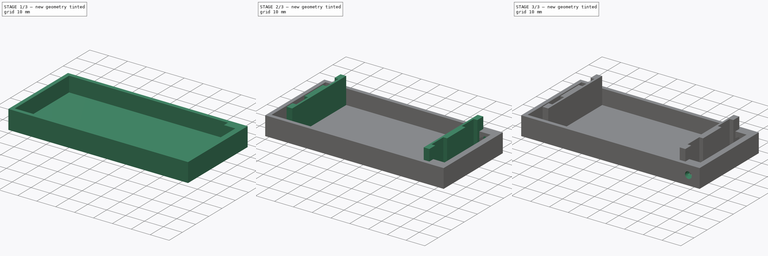
[diagram: build sequence overview — one tinted view per stage of 3, left to right]
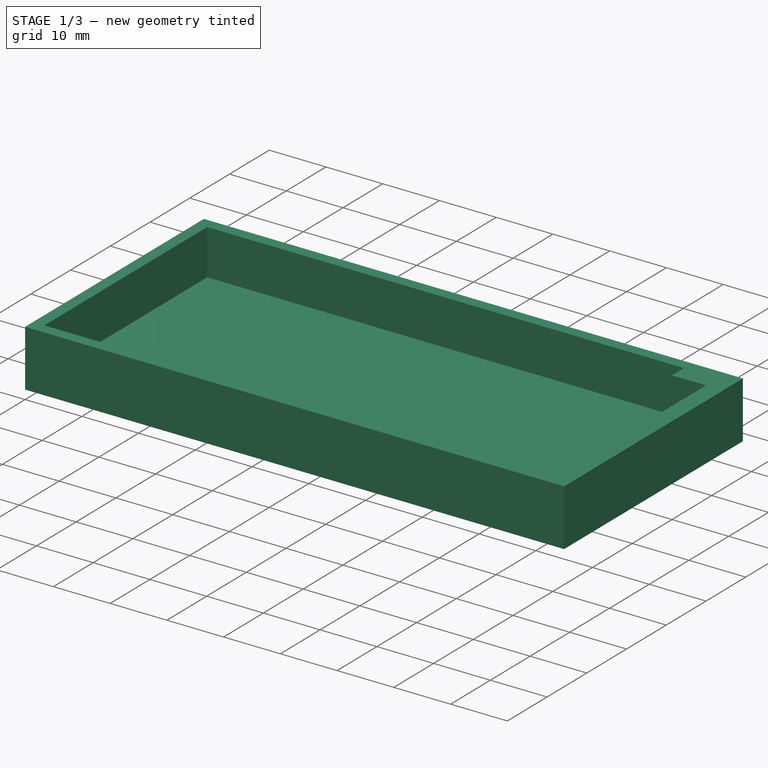
[diagram: stage 1 of 3 — iso view after this stage's code; geometry added in this stage tinted green]
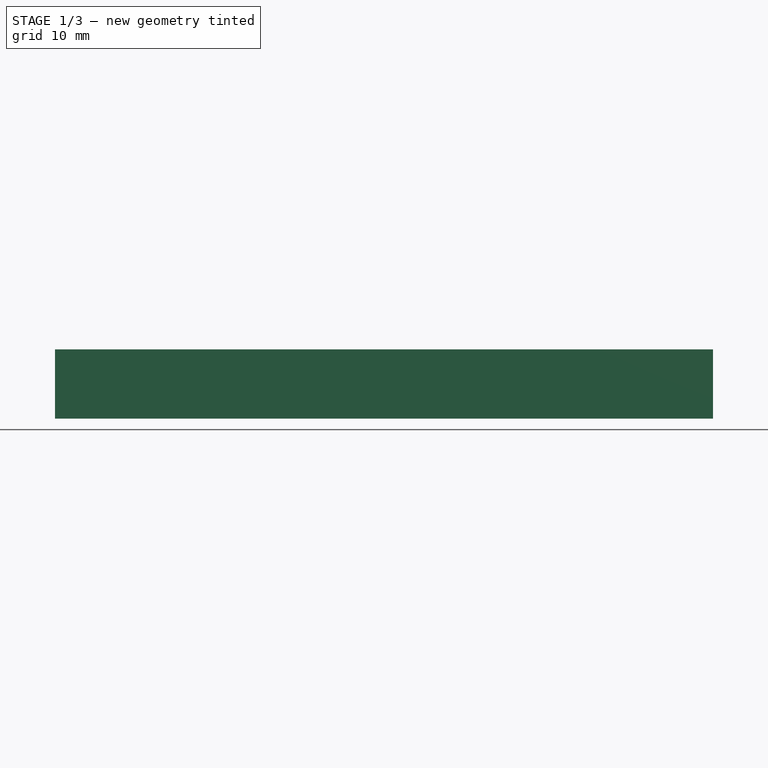
[diagram: stage 1 of 3 — front view after this stage's code; geometry added in this stage tinted green]
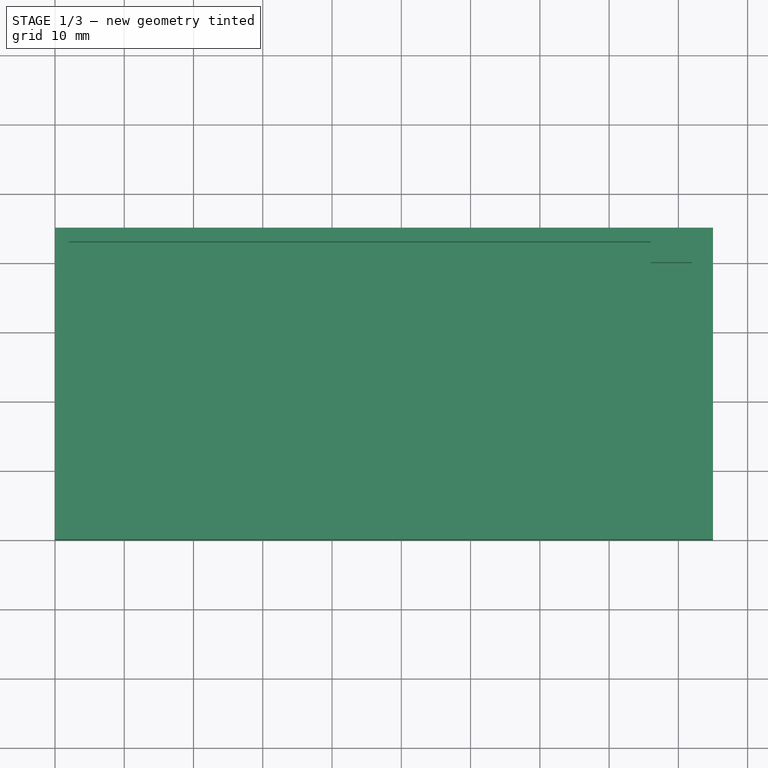
[diagram: stage 1 of 3 — top view after this stage's code; geometry added in this stage tinted green]
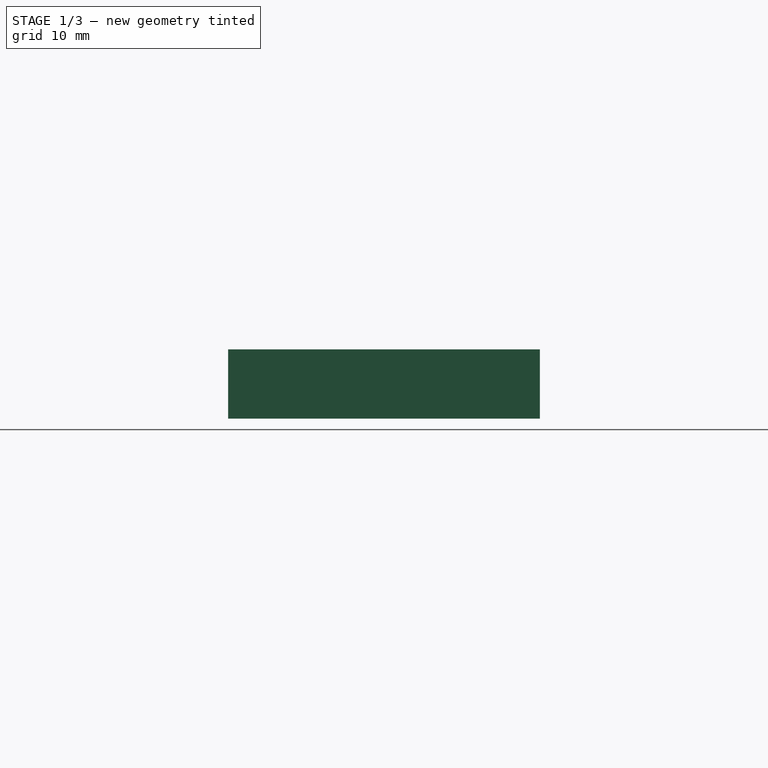
[diagram: stage 1 of 3 — right view after this stage's code; geometry added in this stage tinted green]
FCSTD DOCUMENT
Label: PowerBank
objects: Sketcher::SketchObject×6, PartDesign::Pocket×4, PartDesign::Pad×2
note: 14 computed .brp shape members not serialized (recipe doc carries the construction recipe); baked Part::Feature solids carry a one-line shape summary decoded from their .brp

FEATURE [Sketcher::SketchObject] Sketch
  sketch-geometry (4):
    g0: LineSegment StartX=0 StartY=0 StartZ=0 EndX=95 EndY=0 EndZ=0
    g1: LineSegment StartX=95 StartY=0 StartZ=0 EndX=95 EndY=45 EndZ=0
    g2: LineSegment StartX=95 StartY=45 StartZ=0 EndX=0 EndY=45 EndZ=0
    g3: LineSegment StartX=0 StartY=45 StartZ=0 EndX=0 EndY=0 EndZ=0
  constraints (12):
    c: Coincident(g0,g1)
    c: Coincident(g1,g2)
    c: Coincident(g2,g3)
    c: Coincident(g3,g0)
    c: Horizontal(g0)
    c: Horizontal(g2)
    c: Vertical(g1)
    c: Vertical(g3)
    c: DistanceX(g0) = 0
    c: DistanceY(g0) = 0
    c: DistanceY(g3) = -45
    c: DistanceX(g2) = -95
FEATURE [PartDesign::Pad] Pad
  Length = 10
  MirroredExtent = false
  Sketch = -> Sketch
FEATURE [Sketcher::SketchObject] Sketch001
  Placement = pos=(0,0,10) rot=(0,0,1;0rad)
  Support = -> Pad [Face6]
  sketch-geometry (9):
    g0: LineSegment StartX=2 StartY=43 StartZ=0 EndX=86 EndY=43 EndZ=0
    g1: LineSegment StartX=86 StartY=2 StartZ=0 EndX=2 EndY=2 EndZ=0
    g2: LineSegment StartX=2 StartY=2 StartZ=0 EndX=2 EndY=43 EndZ=0
    g3: LineSegment StartX=86 StartY=43 StartZ=0 EndX=86 EndY=40 EndZ=0
    g4: LineSegment StartX=86 StartY=40 StartZ=0 EndX=92 EndY=40 EndZ=0
    g5: LineSegment StartX=92 StartY=40 StartZ=0 EndX=92 EndY=5 EndZ=0
    g6: LineSegment StartX=92 StartY=5 StartZ=0 EndX=86 EndY=5 EndZ=0
    g7: LineSegment StartX=86 StartY=5 StartZ=0 EndX=86 EndY=2 EndZ=0
    g8: LineSegment [constr] StartX=86 StartY=40 StartZ=0 EndX=86 EndY=5 EndZ=0
  constraints (26):
    c: Coincident(g1,g2)
    c: Coincident(g2,g0)
    c: Horizontal(g0)
    c: Horizontal(g1)
    c: Vertical(g2)
    c: DistanceX(g1) = 2
    c: DistanceY(g1) = 2
    c: DistanceY(g2) = 41
    c: Coincident(g3,g0)
    c: Vertical(g3)
    c: Coincident(g3,g4)
    c: Horizontal(g4)
    c: Coincident(g4,g5)
    c: Vertical(g5)
    c: Coincident(g5,g6)
    c: Horizontal(g6)
    c: Coincident(g6,g7)
    c: Coincident(g7,g1)
    c: DistanceX(g4) = 6
    c: DistanceX(g4,g0) = -90
    c: Vertical(g7)
    c: Equal(g3,g7)
    c: DistanceY(g3) = -3
    c: Coincident(g8,g3)
    c: Coincident(g8,g6)
    c: Vertical(g8)
FEATURE [PartDesign::Pocket] Pocket
  Length = 8
  Sketch = -> Sketch001
  Type = 0
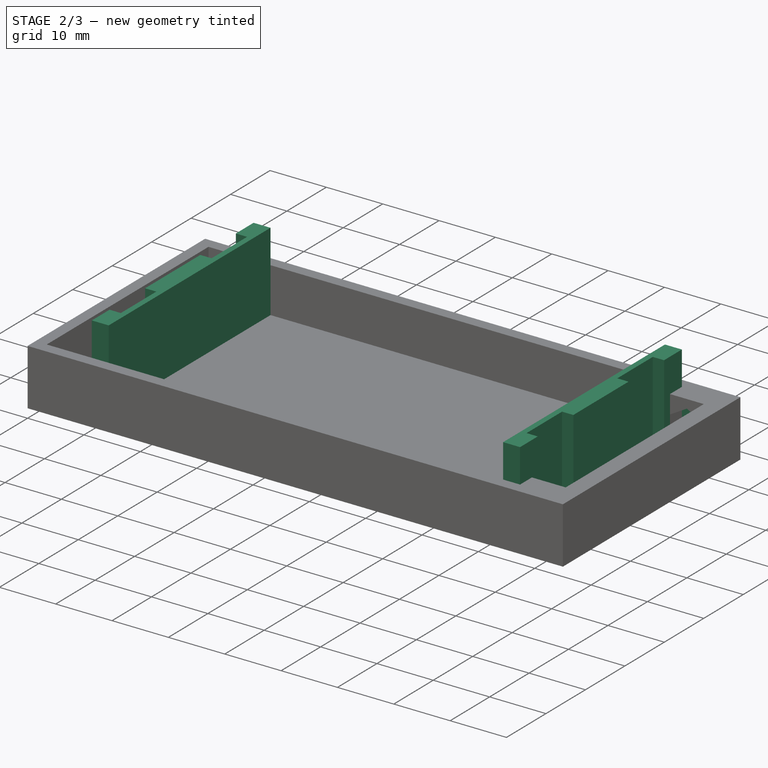
[diagram: stage 2 of 3 — iso view after this stage's code; geometry added in this stage tinted green]
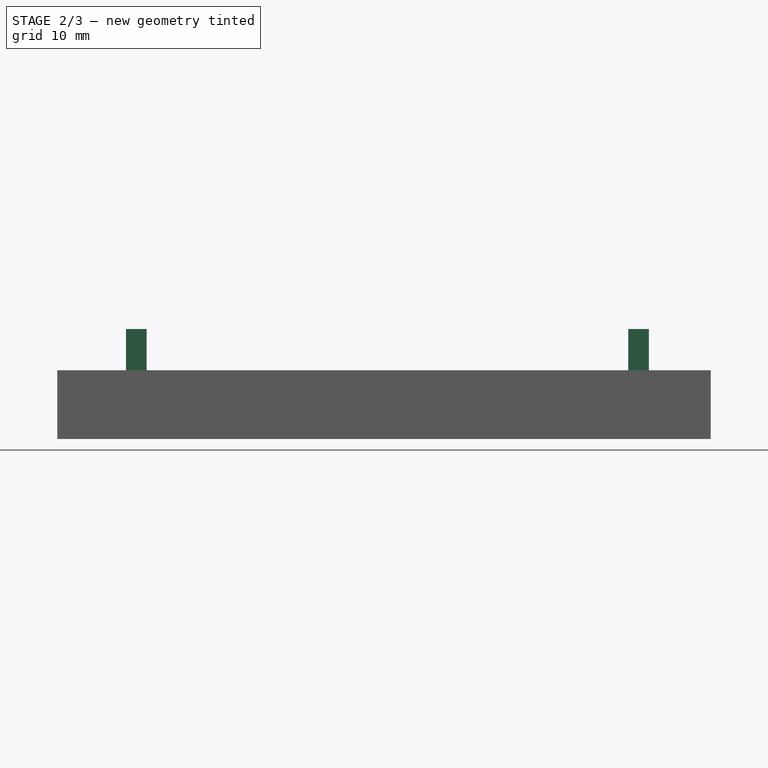
[diagram: stage 2 of 3 — front view after this stage's code; geometry added in this stage tinted green]
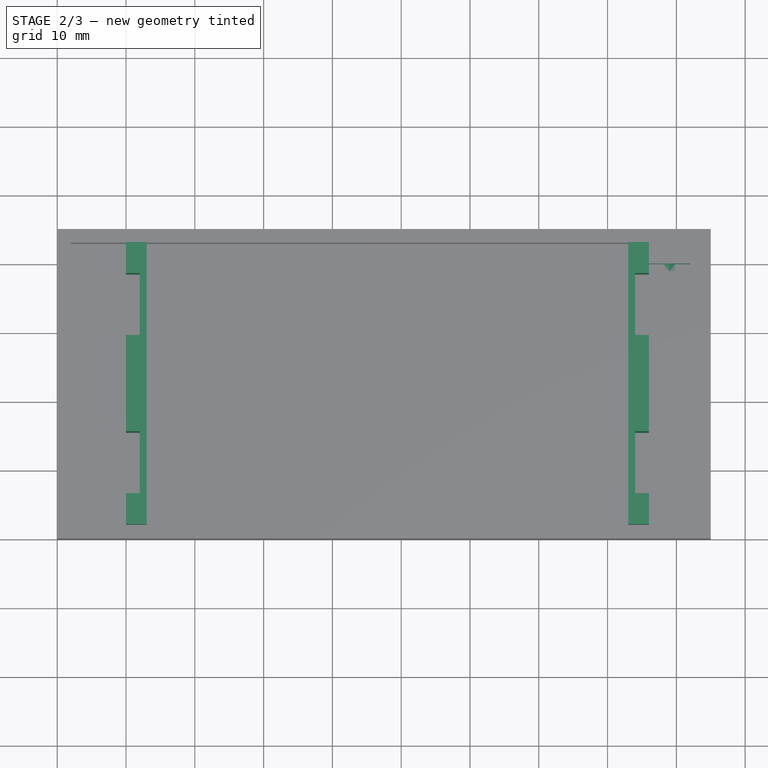
[diagram: stage 2 of 3 — top view after this stage's code; geometry added in this stage tinted green]
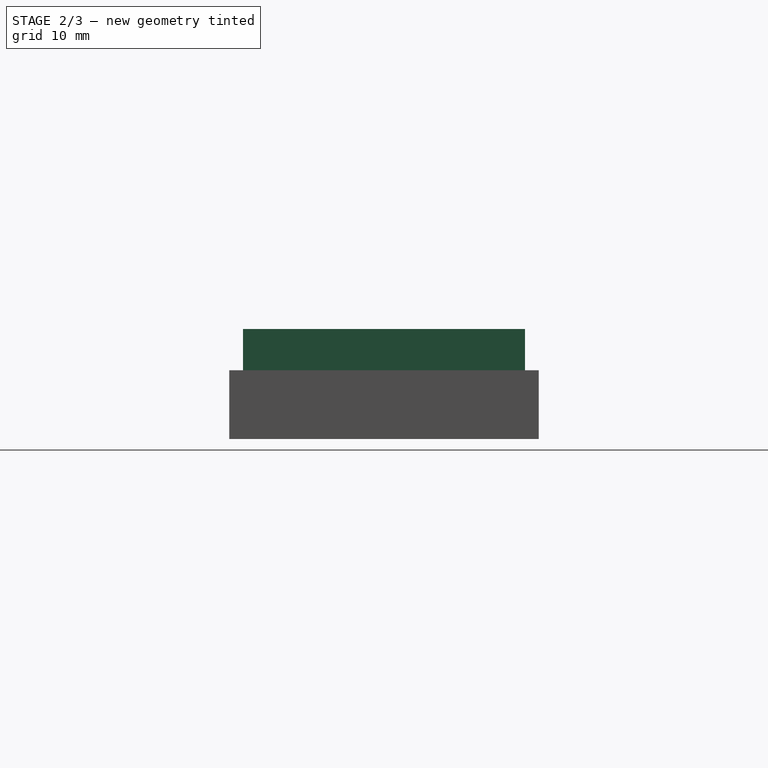
[diagram: stage 2 of 3 — right view after this stage's code; geometry added in this stage tinted green]
FEATURE [Sketcher::SketchObject] Sketch002
  Placement = pos=(0,0,2) rot=(0,0,1;0rad)
  Support = -> Pocket [Face15]
  sketch-geometry (33):
    g0: LineSegment StartX=10 StartY=43 StartZ=0 EndX=10 EndY=38.5 EndZ=0
    g1: LineSegment StartX=10 StartY=38.5 StartZ=0 EndX=12 EndY=38.5 EndZ=0
    g2: LineSegment StartX=12 StartY=29.5 StartZ=0 EndX=10 EndY=29.5 EndZ=0
    g3: LineSegment StartX=10 StartY=29.5 StartZ=0 EndX=10 EndY=15.5 EndZ=0
    g4: LineSegment StartX=10 StartY=15.5 StartZ=0 EndX=12 EndY=15.5 EndZ=0
    g5: LineSegment StartX=12 StartY=15.5 StartZ=0 EndX=12 EndY=6.5 EndZ=0
    g6: LineSegment StartX=12 StartY=6.5 StartZ=0 EndX=10 EndY=6.5 EndZ=0
    g7: LineSegment StartX=10 StartY=6.5 StartZ=0 EndX=10 EndY=2 EndZ=0
    g8: LineSegment StartX=10 StartY=2 StartZ=0 EndX=13 EndY=2 EndZ=0
    g9: LineSegment StartX=13 StartY=2 StartZ=0 EndX=13 EndY=43 EndZ=0
    g10: LineSegment StartX=13 StartY=43 StartZ=0 EndX=10 EndY=43 EndZ=0
    g11: LineSegment [constr] StartX=10 StartY=38.5 StartZ=0 EndX=10 EndY=29.5 EndZ=0
    g12: LineSegment [constr] StartX=10 StartY=15.5 StartZ=0 EndX=10 EndY=6.5 EndZ=0
    g13: LineSegment [constr] StartX=12 StartY=29.5 StartZ=0 EndX=12 EndY=15.5 EndZ=0
    g14: LineSegment StartX=12 StartY=38.5 StartZ=0 EndX=12 EndY=34 EndZ=0
    g15: LineSegment StartX=12 StartY=34 StartZ=0 EndX=12 EndY=29.5 EndZ=0
    g16: LineSegment StartX=86 StartY=38.5 StartZ=0 EndX=86 EndY=43 EndZ=0
    g17: LineSegment StartX=86 StartY=43 StartZ=0 EndX=83 EndY=43 EndZ=0
    g18: LineSegment StartX=83 StartY=43 StartZ=0 EndX=83 EndY=2 EndZ=0
    g19: LineSegment StartX=83 StartY=2 StartZ=0 EndX=86 EndY=2 EndZ=0
    g20: LineSegment StartX=86 StartY=2 StartZ=0 EndX=86 EndY=6.5 EndZ=0
    g21: LineSegment StartX=86 StartY=6.5 StartZ=0 EndX=84 EndY=6.5 EndZ=0
    g22: LineSegment StartX=84 StartY=6.5 StartZ=0 EndX=84 EndY=15.5 EndZ=0
    g23: LineSegment StartX=84 StartY=15.5 StartZ=0 EndX=86 EndY=15.5 EndZ=0
    g24: LineSegment StartX=86 StartY=15.5 StartZ=0 EndX=86 EndY=29.5 EndZ=0
    g25: LineSegment StartX=86 StartY=29.5 StartZ=0 EndX=84 EndY=29.5 EndZ=0
    g26: LineSegment StartX=84 StartY=29.5 StartZ=0 EndX=84 EndY=38.5 EndZ=0
    g27: LineSegment StartX=84 StartY=38.5 StartZ=0 EndX=86 EndY=38.5 EndZ=0
    g28: LineSegment [constr] StartX=86 StartY=38.5 StartZ=0 EndX=86 EndY=29.5 EndZ=0
    g29: LineSegment [constr] StartX=86 StartY=15.5 StartZ=0 EndX=86 EndY=6.5 EndZ=0
    g30: LineSegment [constr] StartX=84 StartY=29.5 StartZ=0 EndX=84 EndY=15.5 EndZ=0
    g31: LineSegment [constr] StartX=13 StartY=43 StartZ=0 EndX=83 EndY=43 EndZ=0
    g32: LineSegment [constr] StartX=13 StartY=2 StartZ=0 EndX=83 EndY=2 EndZ=0
  constraints (91):
    c: Vertical(g0)
    c: Coincident(g0,g1)
    c: Horizontal(g1)
    c: Horizontal(g2)
    c: Coincident(g2,g3)
    c: Vertical(g3)
    c: Coincident(g3,g4)
    c: Horizontal(g4)
    c: Coincident(g4,g5)
    c: Vertical(g5)
    c: Coincident(g5,g6)
    c: Horizontal(g6)
    c: Coincident(g6,g7)
    c: Vertical(g7)
    c: Coincident(g7,g8)
    c: Horizontal(g8)
    c: Coincident(g8,g9)
    c: Vertical(g9)
    c: Coincident(g9,g10)
    c: Coincident(g10,g0)
    c: Horizontal(g10)
    c: Coincident(g11,g0)
    c: Coincident(g11,g2)
    c: Vertical(g11)
    c: Coincident(g12,g3)
    c: Coincident(g12,g6)
    c: Vertical(g12)
    c: Coincident(g13,g4)
    c: Vertical(g13)
    c: Equal(g0,g7)
    c: DistanceX(g7,g8) = 3
    c: DistanceX(g5,g8) = 1
    c: DistanceY(g9,g8) = -41
    c: DistanceY(g8) = 2
    c: DistanceY(g0,g2) = -9
    c: Coincident(g14,g1)
    c: Vertical(g14)
    c: Coincident(g14,g15)
    c: Coincident(g15,g2)
    c: Vertical(g15)
    c: Equal(g15,g14)
    c: DistanceY(g14,g0) = 9
    c: Coincident(g13,g2)
    c: Equal(g12,g11)
    c: DistanceX(g7) = 10
    c: Vertical(g16)
    c: Coincident(g16,g17)
    c: Horizontal(g17)
    c: Coincident(g17,g18)
    c: Vertical(g18)
    c: Coincident(g18,g19)
    c: Horizontal(g19)
    c: Coincident(g19,g20)
    c: Vertical(g20)
    c: Coincident(g20,g21)
    c: Horizontal(g21)
    c: Coincident(g21,g22)
    c: Vertical(g22)
    c: Coincident(g22,g23)
    c: Horizontal(g23)
    c: Coincident(g23,g24)
    c: Vertical(g24)
    c: Coincident(g24,g25)
    c: Horizontal(g25)
    c: Coincident(g25,g26)
    c: Vertical(g26)
    c: Coincident(g26,g27)
    c: Coincident(g27,g16)
    c: Horizontal(g27)
    c: Coincident(g28,g16)
    c: Coincident(g28,g24)
    c: Vertical(g28)
    c: Coincident(g29,g23)
    c: Coincident(g29,g20)
    c: Vertical(g29)
    c: Coincident(g30,g25)
    c: Coincident(g30,g22)
    c: Vertical(g30)
    c: Coincident(g31,g9)
    c: Coincident(g31,g17)
    c: Horizontal(g31)
    c: Coincident(g32,g8)
    c: Coincident(g32,g18)
    c: Horizontal(g32)
    c: Equal(g11,g28)
    c: Equal(g28,g29)
    c: Equal(g10,g17)
    c: Equal(g1,g27)
    c: Equal(g0,g16)
    c: Equal(g20,g16)
    c: DistanceX(g32) = 70
FEATURE [PartDesign::Pad] Pad001
  Length = 14
  MirroredExtent = false
  Sketch = -> Sketch002
FEATURE [Sketcher::SketchObject] Sketch003
  Placement = pos=(0,40,0) rot=(1,0,0;1.5708rad)
  Support = -> Pad001 [Face8]
  sketch-geometry (11):
    g0: LineSegment StartX=86 StartY=3.26795 StartZ=0 EndX=86 EndY=6.73205 EndZ=0
    g1: LineSegment StartX=92 StartY=6.73205 StartZ=0 EndX=92 EndY=3.26795 EndZ=0
    g2: LineSegment StartX=92 StartY=3.26795 StartZ=0 EndX=89 EndY=1.5359 EndZ=0
    g3: LineSegment StartX=89 StartY=1.5359 StartZ=0 EndX=86 EndY=3.26795 EndZ=0
    g4: LineSegment [constr] StartX=86 StartY=6.73205 StartZ=0 EndX=89 EndY=5 EndZ=0
    g5: LineSegment [constr] StartX=89 StartY=5 StartZ=0 EndX=86 EndY=3.26795 EndZ=0
    g6: LineSegment [constr] StartX=92 StartY=3.26795 StartZ=0 EndX=89 EndY=5 EndZ=0
    g7: LineSegment [constr] StartX=89 StartY=5 StartZ=0 EndX=89 EndY=1.5359 EndZ=0
    g8: LineSegment StartX=86 StartY=6.73205 StartZ=0 EndX=89 EndY=8.4641 EndZ=0
    g9: LineSegment StartX=89 StartY=8.4641 StartZ=0 EndX=92 EndY=6.73205 EndZ=0
    g10: LineSegment [constr] StartX=92 StartY=6.73205 StartZ=0 EndX=89 EndY=5 EndZ=0
  constraints (29):
    c: Vertical(g0)
    c: Vertical(g1)
    c: Coincident(g1,g2)
    c: Coincident(g2,g3)
    c: Coincident(g3,g0)
    c: Coincident(g4,g0)
    c: Coincident(g4,g5)
    c: Coincident(g5,g0)
    c: Coincident(g6,g4)
    c: Coincident(g7,g4)
    c: Coincident(g7,g2)
    c: Vertical(g7)
    c: Equal(g6,g7)
    c: Equal(g7,g5)
    c: Equal(g5,g4)
    c: Coincident(g6,g1)
    c: Equal(g2,g1)
    c: Equal(g0,g3)
    c: DistanceX(g0,g1) = 6
    c: DistanceX(g1) = 92
    c: Coincident(g8,g0)
    c: Coincident(g8,g9)
    c: Equal(g1,g9)
    c: Equal(g9,g8)
    c: Coincident(g10,g1)
    c: Coincident(g10,g4)
    c: Equal(g10,g4)
    c: Coincident(g9,g1)
    c: DistanceY(g4) = 5
FEATURE [PartDesign::Pocket] Pocket001
  Length = 3
  Sketch = -> Sketch003
  Type = 0
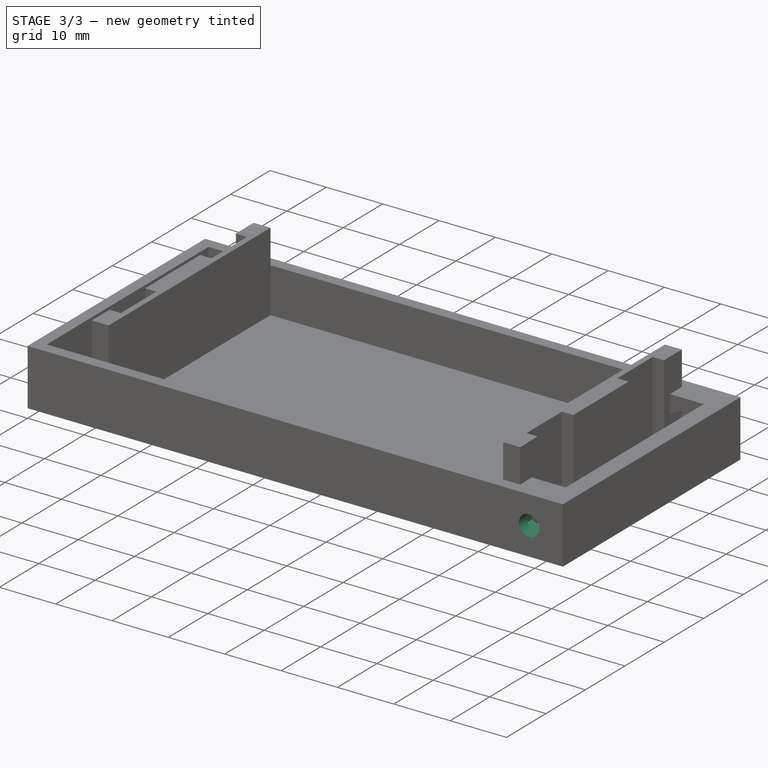
[diagram: stage 3 of 3 — iso view after this stage's code; geometry added in this stage tinted green]
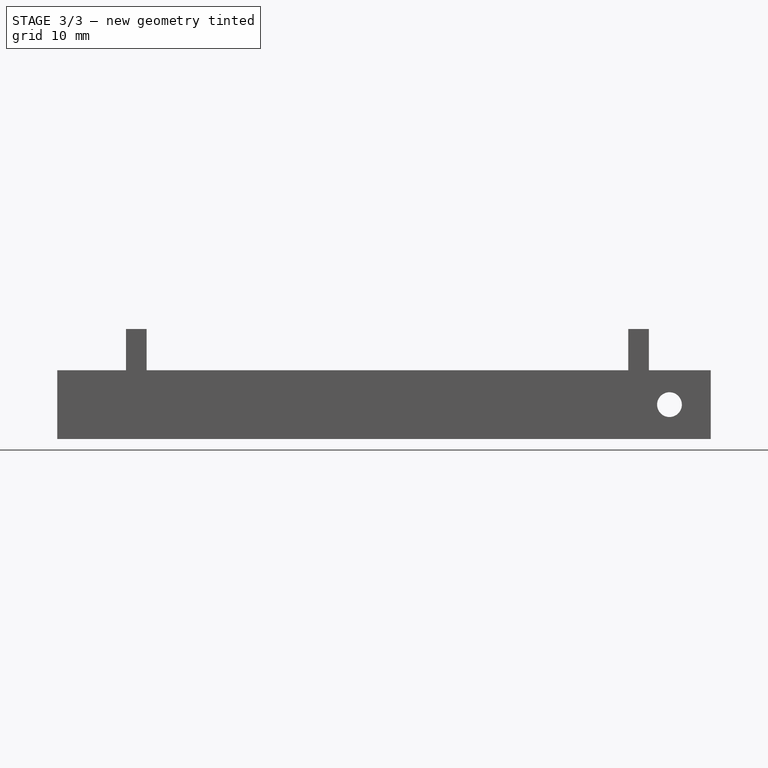
[diagram: stage 3 of 3 — front view after this stage's code; geometry added in this stage tinted green]
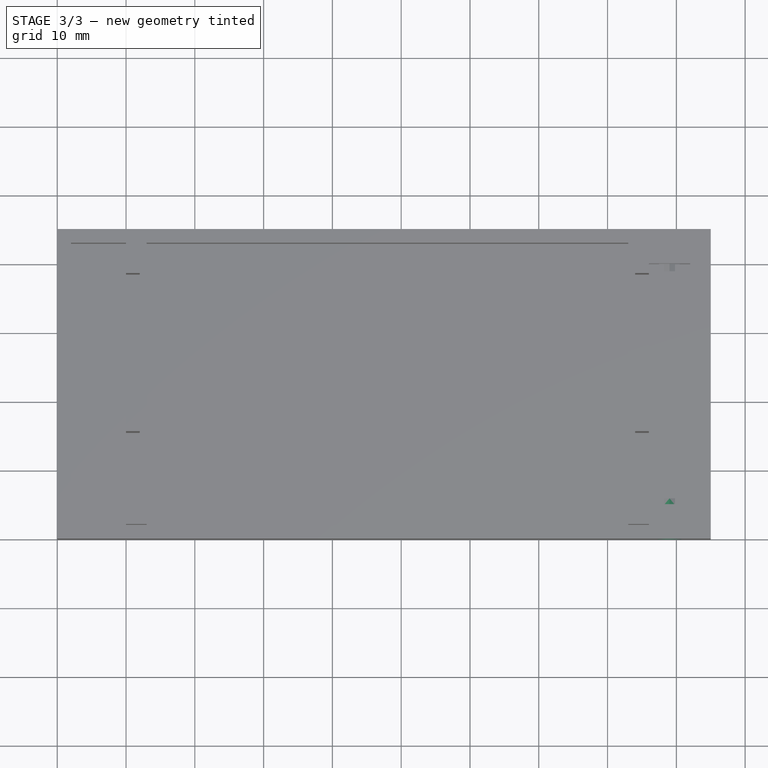
[diagram: stage 3 of 3 — top view after this stage's code; geometry added in this stage tinted green]
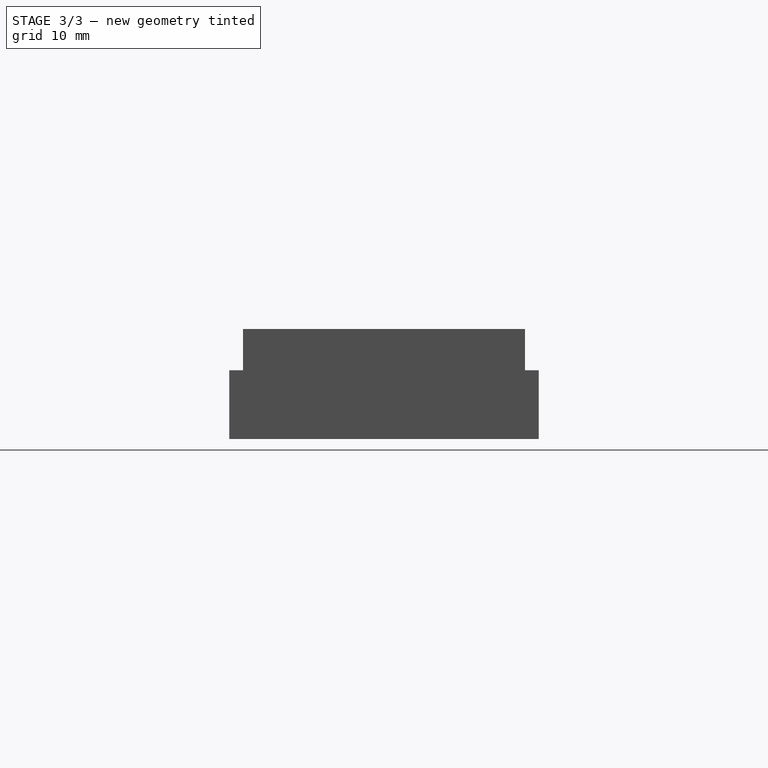
[diagram: stage 3 of 3 — right view after this stage's code; geometry added in this stage tinted green]
FEATURE [Sketcher::SketchObject] Sketch004
  Placement = pos=(0,5,0) rot=(0,0.707107,0.707107;3.14159rad)
  Support = -> Pocket001 [Face12]
  sketch-geometry (11):
    g0: LineSegment StartX=-92 StartY=3.26795 StartZ=0 EndX=-92 EndY=6.73205 EndZ=0
    g1: LineSegment StartX=-92 StartY=6.73205 StartZ=0 EndX=-89 EndY=8.4641 EndZ=0
    g2: LineSegment StartX=-89 StartY=8.4641 StartZ=0 EndX=-86 EndY=6.73205 EndZ=0
    g3: LineSegment StartX=-86 StartY=6.73205 StartZ=0 EndX=-86 EndY=3.26795 EndZ=0
    g4: LineSegment StartX=-86 StartY=3.26795 StartZ=0 EndX=-89 EndY=1.5359 EndZ=0
    g5: LineSegment StartX=-89 StartY=1.5359 StartZ=0 EndX=-92 EndY=3.26795 EndZ=0
    g6: LineSegment [constr] StartX=-92 StartY=6.73205 StartZ=0 EndX=-89 EndY=5 EndZ=0
    g7: LineSegment [constr] StartX=-89 StartY=5 StartZ=0 EndX=-92 EndY=3.26795 EndZ=0
    g8: LineSegment [constr] StartX=-86 StartY=3.26795 StartZ=0 EndX=-89 EndY=5 EndZ=0
    g9: LineSegment [constr] StartX=-89 StartY=5 StartZ=0 EndX=-86 EndY=6.73205 EndZ=0
    g10: LineSegment [constr] StartX=-89 StartY=5 StartZ=0 EndX=-89 EndY=1.5359 EndZ=0
  constraints (29):
    c: Coincident(g0,g1)
    c: Coincident(g1,g2)
    c: Coincident(g2,g3)
    c: Vertical(g3)
    c: Coincident(g3,g4)
    c: Coincident(g4,g5)
    c: Coincident(g5,g0)
    c: Vertical(g0)
    c: Coincident(g6,g0)
    c: Coincident(g6,g7)
    c: Coincident(g7,g0)
    c: Coincident(g8,g6)
    c: Coincident(g8,g9)
    c: Coincident(g9,g2)
    c: Coincident(g10,g6)
    c: Coincident(g10,g4)
    c: Vertical(g10)
    c: Coincident(g3,g8)
    c: Equal(g9,g8)
    c: Equal(g8,g10)
    c: Equal(g10,g7)
    c: Equal(g7,g6)
    c: Equal(g5,g4)
    c: Equal(g4,g3)
    c: Equal(g3,g2)
    c: Equal(g1,g0)
    c: DistanceX(g0,g3) = 6
    c: DistanceX(g0) = -92
    c: DistanceY(g6) = 5
FEATURE [PartDesign::Pocket] Pocket002
  Length = 3
  Sketch = -> Sketch004
  Type = 0
FEATURE [Sketcher::SketchObject] Sketch005
  Placement = pos=(0,0,0) rot=(1,0,0;1.5708rad)
  Support = -> Pocket002 [Face1]
  sketch-geometry (1):
    g0: Circle CenterX=89 CenterY=5 CenterZ=0 NormalX=0 NormalY=0 NormalZ=1 Radius=1.8
  constraints (3):
    c: Radius(g0) = 1.8
    c: DistanceX(g0) = 89
    c: DistanceY(g0) = 5
FEATURE [PartDesign::Pocket] Pocket003
  Length = 55
  Sketch = -> Sketch005
  Type = 0
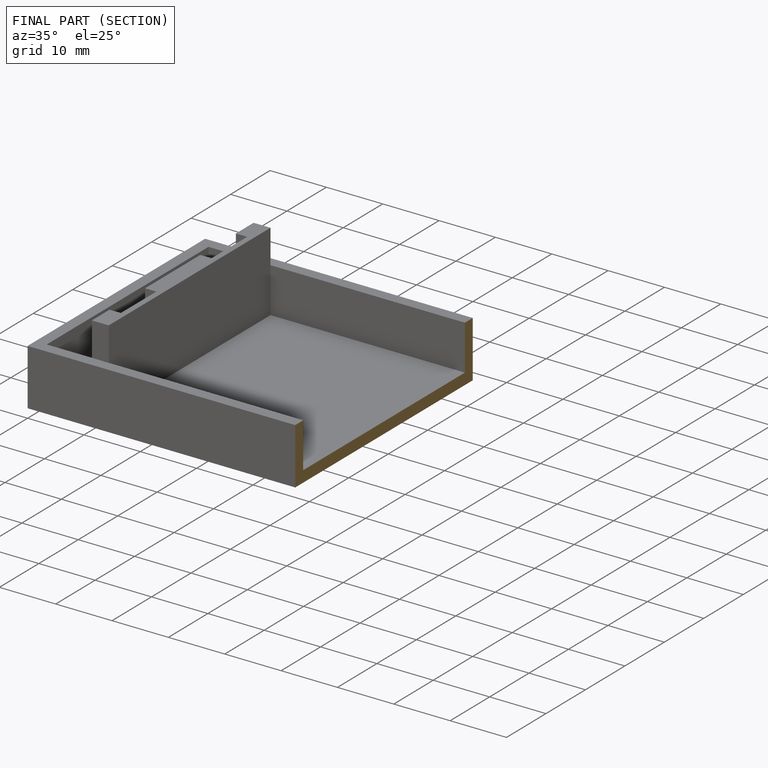
[diagram: finished part — half-section view (interior)]
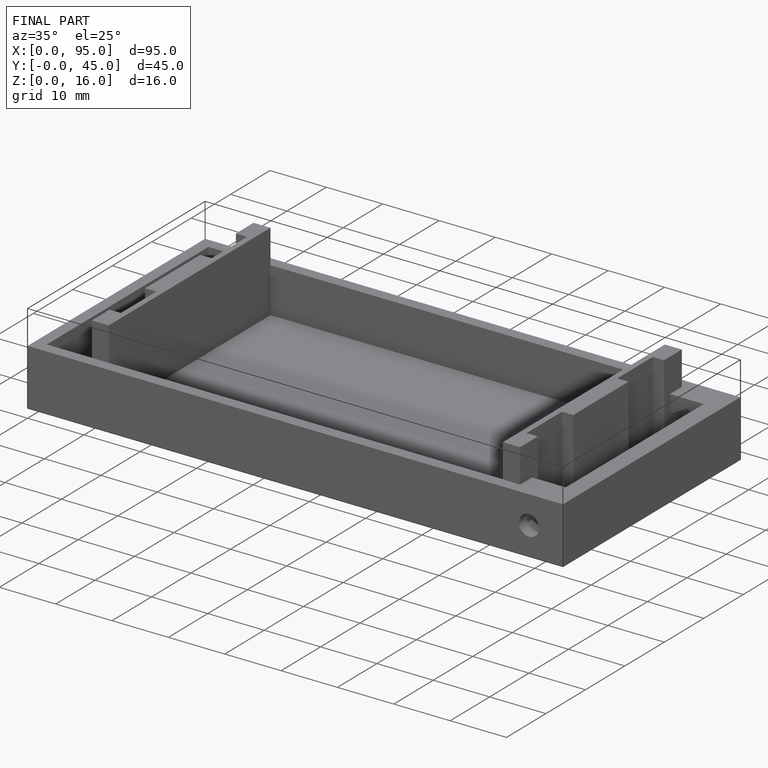
[diagram: finished part — iso view with bounding-box wireframe]
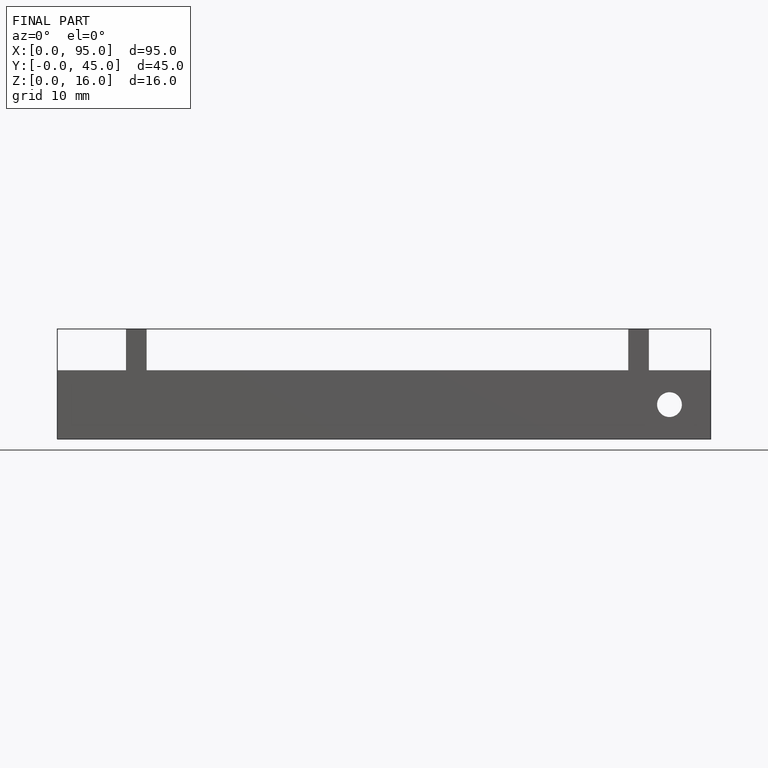
[diagram: finished part — front view with bounding-box wireframe]
